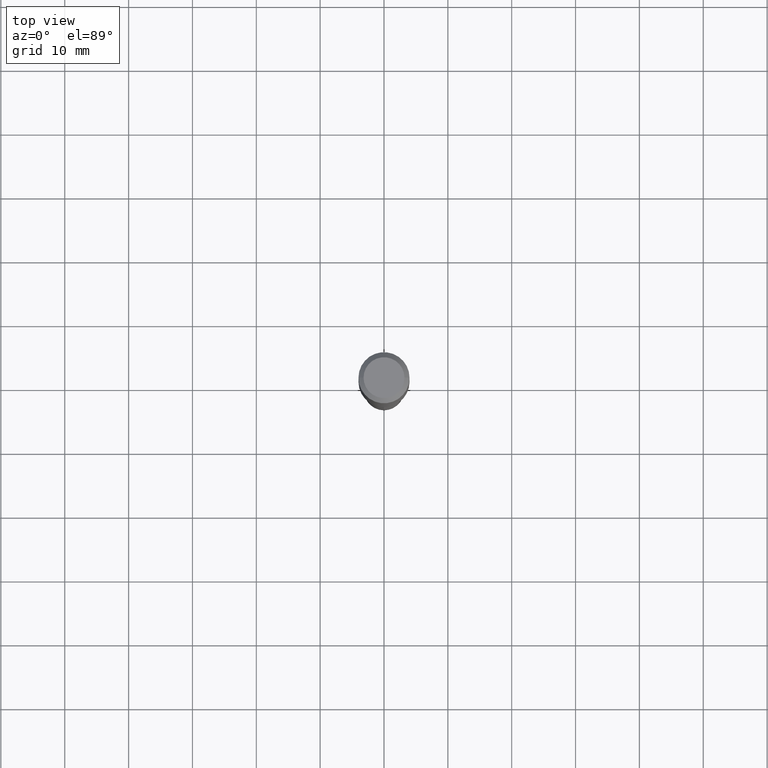
[diagram: clean part render]
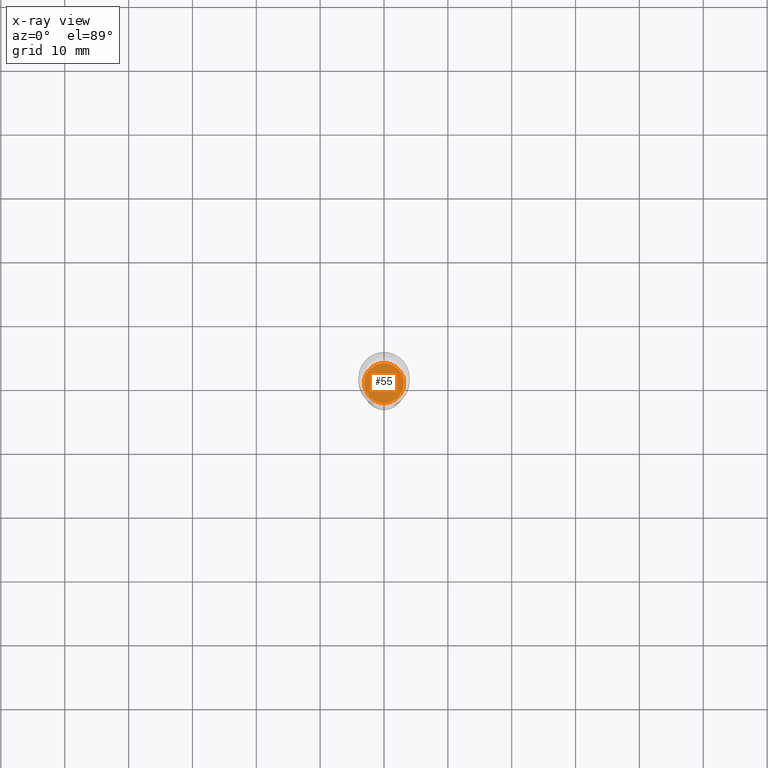
[diagram: x-ray — body ghosted, one internal face saturated and labeled with its STEP entity id]
A machine part, top view, then the same camera in x-ray: the body is ghosted and one INTERNAL B-rep face — a face not visible from any outside direction — is saturated and labeled: STEP entity #55.
In plain terms, the highlighted planar face has unit normal (-0, 0, 1).
Its self-contained STEP definition (entity closure, byte-faithful):
#5 = FACE_OUTER_BOUND ( 'NONE', #340, .T. ) ;
#12 = PLANE ( 'NONE',  #121 ) ;
#23 = EDGE_CURVE ( 'NONE', #74, #207, #115, .T. ) ;
#55 = ADVANCED_FACE ( 'NONE', ( #5 ), #12, .F. ) ;
#67 = CIRCLE ( 'NONE', #488, 0.1234999999999999987 ) ;
#72 = EDGE_CURVE ( 'NONE', #207, #74, #67, .T. ) ;
#73 = ORIENTED_EDGE ( 'NONE', *, *, #23, .F. ) ;
#74 = VERTEX_POINT ( 'NONE', #274 ) ;
#96 = DIRECTION ( 'NONE',  ( 1.000000000000000000, -6.982962677686265922E-15, 0.000000000000000000 ) ) ;
#113 = ORIENTED_EDGE ( 'NONE', *, *, #72, .F. ) ;
#115 = CIRCLE ( 'NONE', #251, 0.1234999999999999987 ) ;
#121 = AXIS2_PLACEMENT_3D ( 'NONE', #198, #315, #158 ) ;
#127 = DIRECTION ( 'NONE',  ( -2.445468806185136597E-29, 3.491481338843145583E-15, 1.000000000000000000 ) ) ;
#133 = CARTESIAN_POINT ( 'NONE',  ( 4.813905344975441835E-29, -6.872981015512731707E-15, -1.968500000000000139 ) ) ;
#158 = DIRECTION ( 'NONE',  ( 1.000000000000000000, -6.982962677686265922E-15, 4.876176775795935793E-29 ) ) ;
#198 = CARTESIAN_POINT ( 'NONE',  ( -1.267370573314747964E-29, -1.558171425523435455E-14, -1.968499999999999694 ) ) ;
#207 = VERTEX_POINT ( 'NONE', #331 ) ;
#251 = AXIS2_PLACEMENT_3D ( 'NONE', #342, #127, #96 ) ;
#274 = CARTESIAN_POINT ( 'NONE',  ( 0.1234999999999999987, -7.735376906206986025E-15, -1.968500000000000139 ) ) ;
#309 = DIRECTION ( 'NONE',  ( -2.445468806185136597E-29, 3.491481338843145583E-15, 1.000000000000000000 ) ) ;
#315 = DIRECTION ( 'NONE',  ( -2.438088387897960049E-29, 3.491481338843145188E-15, 1.000000000000000000 ) ) ;
#316 = DIRECTION ( 'NONE',  ( 1.000000000000000000, -6.982962677686265922E-15, 0.000000000000000000 ) ) ;
#331 = CARTESIAN_POINT ( 'NONE',  ( -0.1234999999999999987, -5.992811509674897969E-15, -1.968500000000000139 ) ) ;
#340 = EDGE_LOOP ( 'NONE', ( #73, #113 ) ) ;
#342 = CARTESIAN_POINT ( 'NONE',  ( 4.813905344975441835E-29, -6.872981015512731707E-15, -1.968500000000000139 ) ) ;
#488 = AXIS2_PLACEMENT_3D ( 'NONE', #133, #309, #316 ) ;